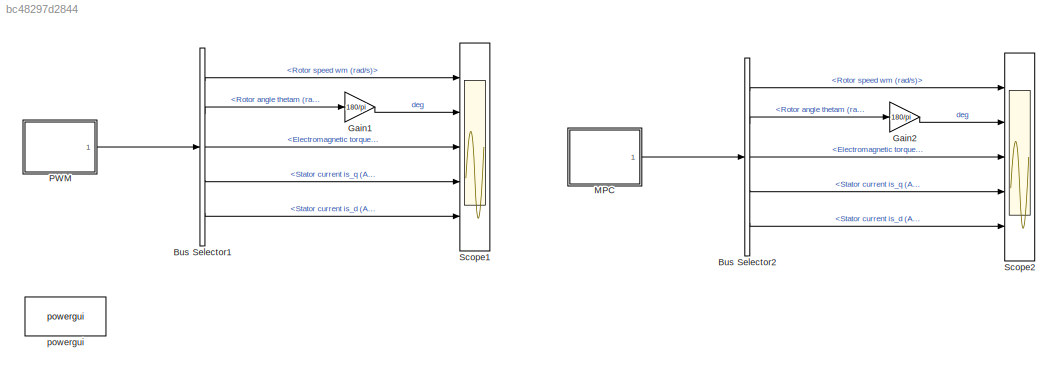
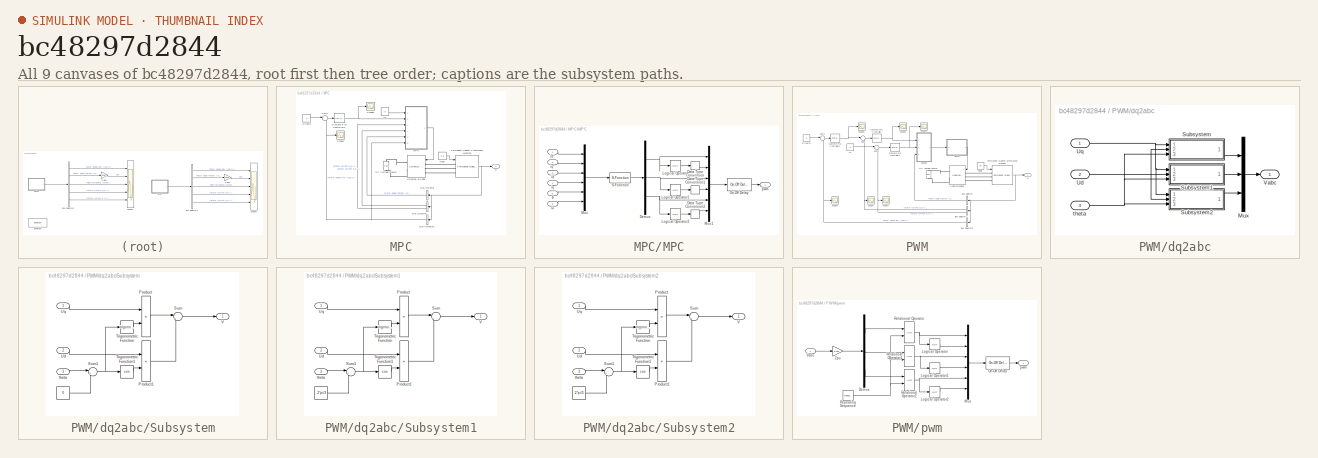
[diagram: thumbnail index - all 9 canvases of the model, root first then tree order]
MODEL slx_bc48297d2844
KIND model
CONFIG AbsTol = auto
CONFIG EnableMultiTasking = off
CONFIG FixedStep = auto
CONFIG MaxStep = 1e-4
CONFIG MinStep = auto
CONFIG RelTol = 1e-6
CONFIG SampleTimeConstraint = Unconstrained
CONFIG Solver = FixedStepDiscrete
CONFIG SolverName = FixedStepDiscrete
CONFIG StartTime = 0.0
CONFIG StopFcn = %CELEC_plot;
CONFIG StopTime = 0.05
BLOCK [BusSelector] Bus Selector1
  OutputAsBus = off
  OutputSignals = Rotor speed wm (rad/s),Rotor angle thetam (rad),Electromagnetic torque Te (N*m),Stator current is_q (A),Stator current is_d (A)
  Ports = [1, 5]
BLOCK [BusSelector] Bus Selector2
  OutputAsBus = off
  OutputSignals = Rotor speed wm (rad/s),Rotor angle thetam (rad),Electromagnetic torque Te (N*m),Stator current is_q (A),Stator current is_d (A)
  Ports = [1, 5]
BLOCK [Gain] Gain1
  Gain = 180/pi
  OutDataTypeStr = Inherit: Inherit via internal rule
  ParamDataTypeStr = Inherit: Inherit via internal rule
  SaturateOnIntegerOverflow = off
BLOCK [Gain] Gain2
  Gain = 180/pi
  OutDataTypeStr = Inherit: Inherit via internal rule
  ParamDataTypeStr = Inherit: Inherit via internal rule
  SaturateOnIntegerOverflow = off
BLOCK [SubSystem] MPC
  Ports = [0, 1]
  RequestExecContextInheritance = off
BLOCK [BusSelector] MPC/Bus Selector
  OutputAsBus = off
  OutputSignals = Rotor angle thetam (rad)
  Ports = [1, 1]
BLOCK [BusSelector] MPC/Bus Selector1
  OutputAsBus = off
  OutputSignals = Stator current is_q (A),Stator current is_d (A)
  Ports = [1, 2]
BLOCK [BusSelector] MPC/Bus Selector2
  OutputAsBus = off
  OutputSignals = Rotor speed wm (rad/s)
  Ports = [1, 1]
BLOCK [Reference] MPC/DC Voltage Source  REF=powerlib/Electrical
Sources/DC Voltage Source
  Ports = [0, 0, 0, 0, 0, 1, 1]
  SourceBlock = powerlib/Electrical\nSources/DC Voltage Source
  SourceProductBaseCode = PS
  SourceProductName = Simscape Power Systems
  SourceType = DC Voltage Source
BLOCK [Reference] MPC/Discrete PID Controller2  REF=simulink/Continuous/PID Controller
  Ports = [1, 1]
  SourceBlock = simulink/Continuous/PID Controller
  SourceProductBaseCode = SL
  SourceProductName = Simulink
  SourceType = PID 1dof
BLOCK [Constant] MPC/Id
  Value = 0
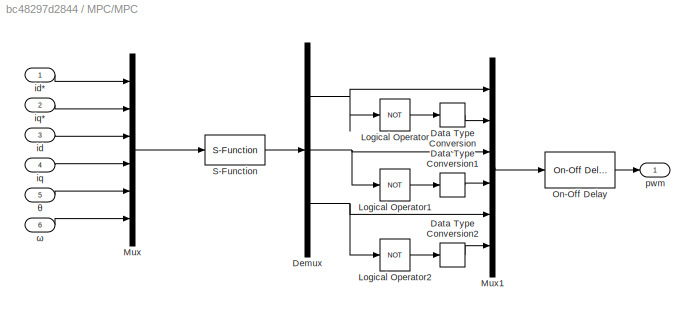
BLOCK [SubSystem] MPC/MPC
  Ports = [6, 1]
  RequestExecContextInheritance = off
BLOCK [DataTypeConversion] MPC/MPC/Data Type Conversion
  RndMeth = Floor
  SaturateOnIntegerOverflow = off
BLOCK [DataTypeConversion] MPC/MPC/Data Type Conversion1
  RndMeth = Floor
  SaturateOnIntegerOverflow = off
BLOCK [DataTypeConversion] MPC/MPC/Data Type Conversion2
  RndMeth = Floor
  SaturateOnIntegerOverflow = off
BLOCK [Demux] MPC/MPC/Demux
  DisplayOption = bar
  Outputs = 3
  Ports = [1, 3]
BLOCK [Logic] MPC/MPC/Logical Operator
  AllPortsSameDT = off
  Operator = NOT
  OutDataTypeStr = boolean
  Ports = [1, 1]
BLOCK [Logic] MPC/MPC/Logical Operator1
  AllPortsSameDT = off
  Operator = NOT
  OutDataTypeStr = boolean
  Ports = [1, 1]
BLOCK [Logic] MPC/MPC/Logical Operator2
  AllPortsSameDT = off
  Operator = NOT
  OutDataTypeStr = boolean
  Ports = [1, 1]
BLOCK [Mux] MPC/MPC/Mux
  DisplayOption = bar
  Inputs = 6
  Ports = [6, 1]
BLOCK [Mux] MPC/MPC/Mux1
  DisplayOption = bar
  Inputs = 6
  Ports = [6, 1]
BLOCK [Reference] MPC/MPC/On-Off Delay  REF=peGeneralControl/On-Off Delay
  Ports = [1, 1]
  SourceBlock = peGeneralControl/On-Off Delay
  SourceType = On-Off Delay
BLOCK [S-Function] MPC/MPC/S-Function
  EnableBusSupport = off
  FunctionName = mpc_pmsm
  Parameters = Vdc,R,Ld,Lq,Phif
  Ports = [1, 1]
  SFcnIsStateOwnerBlock = off
  SFunctionDeploymentMode = off
BLOCK [Inport] MPC/MPC/id
  IconDisplay = Port number
  Port = 3
BLOCK [Inport] MPC/MPC/id*
  IconDisplay = Port number
BLOCK [Inport] MPC/MPC/iq
  IconDisplay = Port number
  Port = 4
BLOCK [Inport] MPC/MPC/iq*
  IconDisplay = Port number
  Port = 2
BLOCK [Outport] MPC/MPC/pwm
  IconDisplay = Port number
BLOCK [Inport] MPC/MPC/θ
  IconDisplay = Port number
  Port = 5
BLOCK [Inport] MPC/MPC/ω
  IconDisplay = Port number
  Port = 6
BLOCK [Reference] MPC/Permanent Magnet Synchronous Machine  REF=powerlib/Machines/Permanent Magnet
Synchronous Machine
  Ports = [1, 1, 0, 0, 0, 3]
  SourceBlock = powerlib/Machines/Permanent Magnet\nSynchronous Machine
  SourceProductBaseCode = PS
  SourceProductName = Simscape Power Systems
  SourceType = Permanent Magnet Synchronous Machine
BLOCK [Scope] MPC/Scope4
  Floating = off
  NumInputPorts = 1
  Ports = [1]
  ScopeSpecificationString = Simulink.scopes.TimeScopeBlockCfg('CurrentConfiguration', extmgr.ConfigurationSet(extmgr.Configuration('Core','General UI',true),extmgr.Configuration('Core','Source UI',true),extmgr.Configuration('Sources','WiredSimulink',true,'DataLoggingVariableName','ScopeData11'),extmgr.Configuration('Visuals','Time Domain',true,'SerializedDisplays',{struct('MinYLimReal','-0.63361','MaxYLimReal','5.7025','YLab...<+1478ch>
BLOCK [Scope] MPC/Scope5
  Floating = off
  NumInputPorts = 1
  Ports = [1]
  ScopeSpecificationString = Simulink.scopes.TimeScopeBlockCfg('CurrentConfiguration', extmgr.ConfigurationSet(extmgr.Configuration('Core','General UI',true),extmgr.Configuration('Core','Source UI',true),extmgr.Configuration('Sources','WiredSimulink',true,'DataLoggingVariableName','ScopeData12'),extmgr.Configuration('Visuals','Time Domain',true,'SerializedDisplays',{struct('MinYLimReal','0.83078','MaxYLimReal','5.46325','YLab...<+1480ch>
BLOCK [Sum] MPC/Sum2
  IconShape = round
  InputSameDT = off
  Inputs = |+-
  OutDataTypeStr = Inherit: Inherit via internal rule
  Ports = [2, 1]
  SaturateOnIntegerOverflow = off
BLOCK [Constant] MPC/Tload
  Value = 0.5
BLOCK [Reference] MPC/Universal Bridge  REF=powerlib/Power
Electronics/Universal Bridge
  Ports = [1, 0, 0, 0, 0, 3, 2]
  SourceBlock = powerlib/Power\nElectronics/Universal Bridge
  SourceProductBaseCode = PS
  SourceProductName = Simscape Power Systems
  SourceType = Universal Bridge
BLOCK [Outport] MPC/m
  IconDisplay = Port number
BLOCK [Constant] MPC/w(rad//s)
  Value = 5
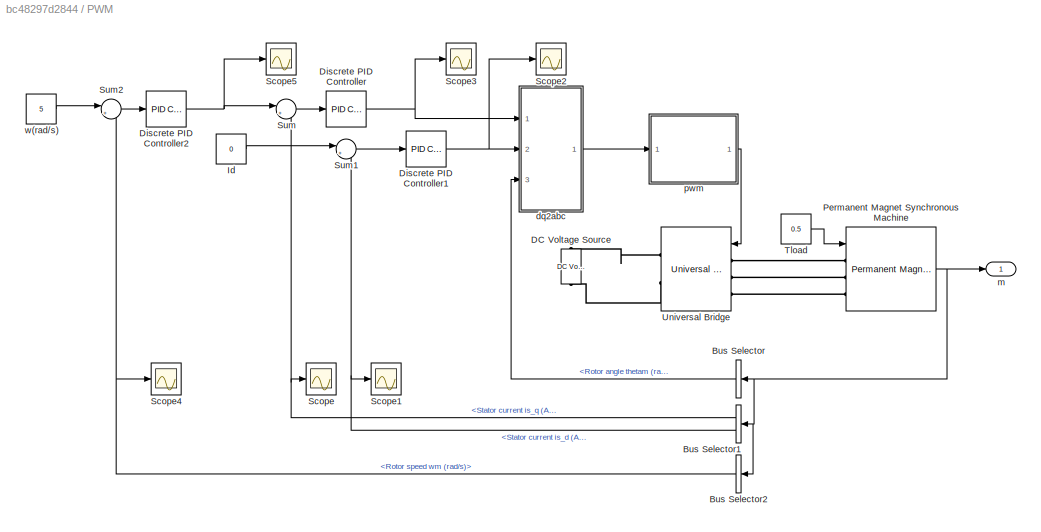
BLOCK [SubSystem] PWM
  Ports = [0, 1]
  RequestExecContextInheritance = off
BLOCK [BusSelector] PWM/Bus Selector
  OutputAsBus = off
  OutputSignals = Rotor angle thetam (rad)
  Ports = [1, 1]
BLOCK [BusSelector] PWM/Bus Selector1
  OutputAsBus = off
  OutputSignals = Stator current is_q (A),Stator current is_d (A)
  Ports = [1, 2]
BLOCK [BusSelector] PWM/Bus Selector2
  OutputAsBus = off
  OutputSignals = Rotor speed wm (rad/s)
  Ports = [1, 1]
BLOCK [Reference] PWM/DC Voltage Source  REF=powerlib/Electrical
Sources/DC Voltage Source
  Ports = [0, 0, 0, 0, 0, 1, 1]
  SourceBlock = powerlib/Electrical\nSources/DC Voltage Source
  SourceProductBaseCode = PS
  SourceProductName = Simscape Power Systems
  SourceType = DC Voltage Source
BLOCK [Reference] PWM/Discrete PID Controller  REF=simulink/Continuous/PID Controller
  Ports = [1, 1]
  SourceBlock = simulink/Continuous/PID Controller
  SourceProductBaseCode = SL
  SourceProductName = Simulink
  SourceType = PID 1dof
BLOCK [Reference] PWM/Discrete PID Controller1  REF=simulink/Continuous/PID Controller
  Ports = [1, 1]
  SourceBlock = simulink/Continuous/PID Controller
  SourceProductBaseCode = SL
  SourceProductName = Simulink
  SourceType = PID 1dof
BLOCK [Reference] PWM/Discrete PID Controller2  REF=simulink/Continuous/PID Controller
  Ports = [1, 1]
  SourceBlock = simulink/Continuous/PID Controller
  SourceProductBaseCode = SL
  SourceProductName = Simulink
  SourceType = PID 1dof
BLOCK [Constant] PWM/Id
  Value = 0
BLOCK [Reference] PWM/Permanent Magnet Synchronous Machine  REF=powerlib/Machines/Permanent Magnet
Synchronous Machine
  Ports = [1, 1, 0, 0, 0, 3]
  SourceBlock = powerlib/Machines/Permanent Magnet\nSynchronous Machine
  SourceProductBaseCode = PS
  SourceProductName = Simscape Power Systems
  SourceType = Permanent Magnet Synchronous Machine
BLOCK [Scope] PWM/Scope
  Floating = off
  NumInputPorts = 1
  Ports = [1]
  ScopeSpecificationString = Simulink.scopes.TimeScopeBlockCfg('CurrentConfiguration', extmgr.ConfigurationSet(extmgr.Configuration('Core','General UI',true),extmgr.Configuration('Core','Source UI',true),extmgr.Configuration('Sources','WiredSimulink',true,'DataLoggingVariableName','ScopeData7'),extmgr.Configuration('Visuals','Time Domain',true,'SerializedDisplays',{struct('MinYLimReal','-0.62514','MaxYLimReal','5.62624','YLab...<+1482ch>
BLOCK [Scope] PWM/Scope1
  Floating = off
  NumInputPorts = 1
  Ports = [1]
  ScopeSpecificationString = Simulink.scopes.TimeScopeBlockCfg('CurrentConfiguration', extmgr.ConfigurationSet(extmgr.Configuration('Core','General UI',true),extmgr.Configuration('Core','Source UI',true),extmgr.Configuration('Sources','WiredSimulink',true,'DataLoggingVariableName','ScopeData8'),extmgr.Configuration('Visuals','Time Domain',true,'SerializedDisplays',{struct('MinYLimReal','-0.00019','MaxYLimReal','0.00115','YLab...<+1409ch>
BLOCK [Scope] PWM/Scope2
  Floating = off
  NumInputPorts = 1
  Ports = [1]
  ScopeSpecificationString = Simulink.scopes.TimeScopeBlockCfg('CurrentConfiguration', extmgr.ConfigurationSet(extmgr.Configuration('Core','General UI',true),extmgr.Configuration('Core','Source UI',true),extmgr.Configuration('Sources','WiredSimulink',true,'DataLoggingVariableName','ScopeData9'),extmgr.Configuration('Visuals','Time Domain',true,'SerializedDisplays',{struct('MinYLimReal','-90.76761','MaxYLimReal','89.7655','YLa...<+1387ch>
BLOCK [Scope] PWM/Scope3
  Floating = off
  NumInputPorts = 1
  Ports = [1]
  ScopeSpecificationString = Simulink.scopes.TimeScopeBlockCfg('CurrentConfiguration', extmgr.ConfigurationSet(extmgr.Configuration('Core','General UI',true),extmgr.Configuration('Core','Source UI',true),extmgr.Configuration('Sources','WiredSimulink',true,'DataLoggingVariableName','ScopeData10'),extmgr.Configuration('Visuals','Time Domain',true,'SerializedDisplays',{struct('MinYLimReal','-54.60763','MaxYLimReal','117.17863','...<+1418ch>
BLOCK [Scope] PWM/Scope4
  Floating = off
  NumInputPorts = 1
  Ports = [1]
  ScopeSpecificationString = Simulink.scopes.TimeScopeBlockCfg('CurrentConfiguration', extmgr.ConfigurationSet(extmgr.Configuration('Core','General UI',true),extmgr.Configuration('Core','Source UI',true),extmgr.Configuration('Sources','WiredSimulink',true,'DataLoggingVariableName','ScopeData11'),extmgr.Configuration('Visuals','Time Domain',true,'SerializedDisplays',{struct('MinYLimReal','-0.63361','MaxYLimReal','5.7025','YLab...<+1478ch>
BLOCK [Scope] PWM/Scope5
  Floating = off
  NumInputPorts = 1
  Ports = [1]
  ScopeSpecificationString = Simulink.scopes.TimeScopeBlockCfg('CurrentConfiguration', extmgr.ConfigurationSet(extmgr.Configuration('Core','General UI',true),extmgr.Configuration('Core','Source UI',true),extmgr.Configuration('Sources','WiredSimulink',true,'DataLoggingVariableName','ScopeData12'),extmgr.Configuration('Visuals','Time Domain',true,'SerializedDisplays',{struct('MinYLimReal','0.83078','MaxYLimReal','5.46325','YLab...<+1480ch>
BLOCK [Sum] PWM/Sum
  IconShape = round
  InputSameDT = off
  Inputs = |+-
  OutDataTypeStr = Inherit: Inherit via internal rule
  Ports = [2, 1]
  SaturateOnIntegerOverflow = off
BLOCK [Sum] PWM/Sum1
  IconShape = round
  InputSameDT = off
  Inputs = |+-
  OutDataTypeStr = Inherit: Inherit via internal rule
  Ports = [2, 1]
  SaturateOnIntegerOverflow = off
BLOCK [Sum] PWM/Sum2
  IconShape = round
  InputSameDT = off
  Inputs = |+-
  OutDataTypeStr = Inherit: Inherit via internal rule
  Ports = [2, 1]
  SaturateOnIntegerOverflow = off
BLOCK [Constant] PWM/Tload
  Value = 0.5
BLOCK [Reference] PWM/Universal Bridge  REF=powerlib/Power
Electronics/Universal Bridge
  Ports = [1, 0, 0, 0, 0, 3, 2]
  SourceBlock = powerlib/Power\nElectronics/Universal Bridge
  SourceProductBaseCode = PS
  SourceProductName = Simscape Power Systems
  SourceType = Universal Bridge
BLOCK [SubSystem] PWM/dq2abc
  Ports = [3, 1]
  RequestExecContextInheritance = off
BLOCK [Mux] PWM/dq2abc/Mux
  DisplayOption = bar
  Inputs = 3
  Ports = [3, 1]
BLOCK [SubSystem] PWM/dq2abc/Subsystem
  Ports = [3, 1]
  RequestExecContextInheritance = off
BLOCK [Constant] PWM/dq2abc/Subsystem/  
  Value = 0
BLOCK [Product] PWM/dq2abc/Subsystem/Product
  InputSameDT = off
  OutDataTypeStr = Inherit: Inherit via internal rule
  Ports = [2, 1]
  RndMeth = Floor
  SaturateOnIntegerOverflow = off
BLOCK [Product] PWM/dq2abc/Subsystem/Product1
  InputSameDT = off
  OutDataTypeStr = Inherit: Inherit via internal rule
  Ports = [2, 1]
  RndMeth = Floor
  SaturateOnIntegerOverflow = off
BLOCK [Sum] PWM/dq2abc/Subsystem/Sum
  IconShape = round
  InputSameDT = off
  Inputs = |-+
  OutDataTypeStr = Inherit: Inherit via internal rule
  Ports = [2, 1]
  SaturateOnIntegerOverflow = off
BLOCK [Sum] PWM/dq2abc/Subsystem/Sum1
  IconShape = round
  InputSameDT = off
  Inputs = |++
  OutDataTypeStr = Inherit: Inherit via internal rule
  Ports = [2, 1]
  SaturateOnIntegerOverflow = off
BLOCK [Trigonometry] PWM/dq2abc/Subsystem/Trigonometric Function
  Ports = [1, 1]
BLOCK [Trigonometry] PWM/dq2abc/Subsystem/Trigonometric Function1
  Operator = cos
  Ports = [1, 1]
BLOCK [Inport] PWM/dq2abc/Subsystem/Ud
  IconDisplay = Port number
  Port = 2
BLOCK [Inport] PWM/dq2abc/Subsystem/Uq
  IconDisplay = Port number
BLOCK [Outport] PWM/dq2abc/Subsystem/V
  IconDisplay = Port number
BLOCK [Inport] PWM/dq2abc/Subsystem/theta
  IconDisplay = Port number
  Port = 3
BLOCK [SubSystem] PWM/dq2abc/Subsystem1
  Ports = [3, 1]
  RequestExecContextInheritance = off
BLOCK [Constant] PWM/dq2abc/Subsystem1/  
  Value = -2*pi/3
BLOCK [Product] PWM/dq2abc/Subsystem1/Product
  InputSameDT = off
  OutDataTypeStr = Inherit: Inherit via internal rule
  Ports = [2, 1]
  RndMeth = Floor
  SaturateOnIntegerOverflow = off
BLOCK [Product] PWM/dq2abc/Subsystem1/Product1
  InputSameDT = off
  OutDataTypeStr = Inherit: Inherit via internal rule
  Ports = [2, 1]
  RndMeth = Floor
  SaturateOnIntegerOverflow = off
BLOCK [Sum] PWM/dq2abc/Subsystem1/Sum
  IconShape = round
  InputSameDT = off
  Inputs = |-+
  OutDataTypeStr = Inherit: Inherit via internal rule
  Ports = [2, 1]
  SaturateOnIntegerOverflow = off
BLOCK [Sum] PWM/dq2abc/Subsystem1/Sum1
  IconShape = round
  InputSameDT = off
  Inputs = |++
  OutDataTypeStr = Inherit: Inherit via internal rule
  Ports = [2, 1]
  SaturateOnIntegerOverflow = off
BLOCK [Trigonometry] PWM/dq2abc/Subsystem1/Trigonometric Function
  Ports = [1, 1]
BLOCK [Trigonometry] PWM/dq2abc/Subsystem1/Trigonometric Function1
  Operator = cos
  Ports = [1, 1]
BLOCK [Inport] PWM/dq2abc/Subsystem1/Ud
  IconDisplay = Port number
  Port = 2
BLOCK [Inport] PWM/dq2abc/Subsystem1/Uq
  IconDisplay = Port number
BLOCK [Outport] PWM/dq2abc/Subsystem1/V
  IconDisplay = Port number
BLOCK [Inport] PWM/dq2abc/Subsystem1/theta
  IconDisplay = Port number
  Port = 3
BLOCK [SubSystem] PWM/dq2abc/Subsystem2
  Ports = [3, 1]
  RequestExecContextInheritance = off
BLOCK [Constant] PWM/dq2abc/Subsystem2/  
  Value = 2*pi/3
BLOCK [Product] PWM/dq2abc/Subsystem2/Product
  InputSameDT = off
  OutDataTypeStr = Inherit: Inherit via internal rule
  Ports = [2, 1]
  RndMeth = Floor
  SaturateOnIntegerOverflow = off
BLOCK [Product] PWM/dq2abc/Subsystem2/Product1
  InputSameDT = off
  OutDataTypeStr = Inherit: Inherit via internal rule
  Ports = [2, 1]
  RndMeth = Floor
  SaturateOnIntegerOverflow = off
BLOCK [Sum] PWM/dq2abc/Subsystem2/Sum
  IconShape = round
  InputSameDT = off
  Inputs = |-+
  OutDataTypeStr = Inherit: Inherit via internal rule
  Ports = [2, 1]
  SaturateOnIntegerOverflow = off
BLOCK [Sum] PWM/dq2abc/Subsystem2/Sum1
  IconShape = round
  InputSameDT = off
  Inputs = |++
  OutDataTypeStr = Inherit: Inherit via internal rule
  Ports = [2, 1]
  SaturateOnIntegerOverflow = off
BLOCK [Trigonometry] PWM/dq2abc/Subsystem2/Trigonometric Function
  Ports = [1, 1]
BLOCK [Trigonometry] PWM/dq2abc/Subsystem2/Trigonometric Function1
  Operator = cos
  Ports = [1, 1]
BLOCK [Inport] PWM/dq2abc/Subsystem2/Ud
  IconDisplay = Port number
  Port = 2
BLOCK [Inport] PWM/dq2abc/Subsystem2/Uq
  IconDisplay = Port number
BLOCK [Outport] PWM/dq2abc/Subsystem2/V
  IconDisplay = Port number
BLOCK [Inport] PWM/dq2abc/Subsystem2/theta
  IconDisplay = Port number
  Port = 3
BLOCK [Inport] PWM/dq2abc/Ud
  IconDisplay = Port number
  Port = 2
BLOCK [Inport] PWM/dq2abc/Uq
  IconDisplay = Port number
BLOCK [Outport] PWM/dq2abc/Vabc
  IconDisplay = Port number
BLOCK [Inport] PWM/dq2abc/theta
  IconDisplay = Port number
  Port = 3
BLOCK [Outport] PWM/m
  IconDisplay = Port number
BLOCK [SubSystem] PWM/pwm
  Ports = [1, 1]
  RequestExecContextInheritance = off
BLOCK [Gain] PWM/pwm/2pu
  Gain = 1/100
  OutDataTypeStr = Inherit: Inherit via internal rule
  ParamDataTypeStr = Inherit: Inherit via internal rule
  SaturateOnIntegerOverflow = off
BLOCK [Demux] PWM/pwm/Demux
  DisplayOption = bar
  Outputs = 3
  Ports = [1, 3]
BLOCK [Logic] PWM/pwm/Logical Operator
  AllPortsSameDT = off
  Operator = NOT
  OutDataTypeStr = boolean
  Ports = [1, 1]
BLOCK [Logic] PWM/pwm/Logical Operator1
  AllPortsSameDT = off
  Operator = NOT
  OutDataTypeStr = boolean
  Ports = [1, 1]
BLOCK [Logic] PWM/pwm/Logical Operator2
  AllPortsSameDT = off
  Operator = NOT
  OutDataTypeStr = boolean
  Ports = [1, 1]
BLOCK [Mux] PWM/pwm/Mux
  DisplayOption = bar
  Inputs = 6
  Ports = [6, 1]
BLOCK [Reference] PWM/pwm/On-Off Delay  REF=peGeneralControl/On-Off Delay
  Ports = [1, 1]
  SourceBlock = peGeneralControl/On-Off Delay
  SourceType = On-Off Delay
BLOCK [RelationalOperator] PWM/pwm/Relational Operator
  InputSameDT = off
  OutDataTypeStr = boolean
  Ports = [2, 1]
  RndMeth = Simplest
BLOCK [RelationalOperator] PWM/pwm/Relational Operator1
  InputSameDT = off
  OutDataTypeStr = boolean
  Ports = [2, 1]
  RndMeth = Simplest
BLOCK [RelationalOperator] PWM/pwm/Relational Operator2
  InputSameDT = off
  OutDataTypeStr = boolean
  Ports = [2, 1]
  RndMeth = Simplest
BLOCK [Reference] PWM/pwm/Repeating Sequence  REF=simulink/Sources/Repeating
Sequence
  Ports = [0, 1]
  SourceBlock = simulink/Sources/Repeating\nSequence
  SourceProductBaseCode = SL
  SourceProductName = Simulink
  SourceType = Repeating table
BLOCK [Inport] PWM/pwm/Vabc
  IconDisplay = Port number
BLOCK [Outport] PWM/pwm/pwm
  IconDisplay = Port number
BLOCK [Constant] PWM/w(rad//s)
  Value = 5
BLOCK [Scope] Scope1
  Floating = off
  NumInputPorts = 5
  Ports = [5]
  ScopeSpecificationString = Simulink.scopes.TimeScopeBlockCfg('CurrentConfiguration', extmgr.ConfigurationSet(extmgr.Configuration('Core','General UI',true),extmgr.Configuration('Core','Source UI',true),extmgr.Configuration('Sources','WiredSimulink',true),extmgr.Configuration('Visuals','Time Domain',true,'SerializedDisplays',{struct('MinYLimReal','-0.63045','MaxYLimReal','5.63416','YLabelReal','','MinYLimMag','0.00000','MaxY...<+4313ch>
BLOCK [Scope] Scope2
  Floating = off
  NumInputPorts = 5
  Ports = [5]
  ScopeSpecificationString = Simulink.scopes.TimeScopeBlockCfg('CurrentConfiguration', extmgr.ConfigurationSet(extmgr.Configuration('Core','General UI',true),extmgr.Configuration('Core','Source UI',true),extmgr.Configuration('Sources','WiredSimulink',true,'DataLoggingVariableName','ScopeData1'),extmgr.Configuration('Visuals','Time Domain',true,'SerializedDisplays',{struct('MinYLimReal','-0.62456','MaxYLimReal','5.59402','YLab...<+4351ch>
BLOCK [Reference] powergui  REF=powerlib/powergui
  Ports = []
  Priority = 1
  SourceBlock = powerlib/powergui
  SourceProductBaseCode = PS
  SourceProductName = Simscape Power Systems
  SourceType = PSB option menu block
LINE Bus Selector1:1 -> Scope1:1
LINE Bus Selector1:2 -> Gain1:1
LINE Bus Selector1:3 -> Scope1:3
LINE Bus Selector1:4 -> Scope1:4
LINE Bus Selector1:5 -> Scope1:5
LINE Bus Selector2:1 -> Scope2:1
LINE Bus Selector2:2 -> Gain2:1
LINE Bus Selector2:3 -> Scope2:3
LINE Bus Selector2:4 -> Scope2:4
LINE Bus Selector2:5 -> Scope2:5
LINE Gain1:1 -> Scope1:2
LINE Gain2:1 -> Scope2:2
LINE MPC/Bus Selector1:1 -> MPC/MPC:4
LINE MPC/Bus Selector1:2 -> MPC/MPC:3
NET MPC/Bus Selector2:1 -> MPC/MPC:6, MPC/Scope4:1, MPC/Sum2:2
LINE MPC/Bus Selector:1 -> MPC/MPC:5
NET MPC/Discrete PID Controller2:1 -> MPC/MPC:2, MPC/Scope5:1
LINE MPC/Id:1 -> MPC/MPC:1
LINE MPC/MPC/Data Type Conversion1:1 -> MPC/MPC/Mux1:4
LINE MPC/MPC/Data Type Conversion2:1 -> MPC/MPC/Mux1:6
LINE MPC/MPC/Data Type Conversion:1 -> MPC/MPC/Mux1:2
NET MPC/MPC/Demux:1 -> MPC/MPC/Logical Operator:1, MPC/MPC/Mux1:1
NET MPC/MPC/Demux:2 -> MPC/MPC/Logical Operator1:1, MPC/MPC/Mux1:3
NET MPC/MPC/Demux:3 -> MPC/MPC/Logical Operator2:1, MPC/MPC/Mux1:5
LINE MPC/MPC/Logical Operator1:1 -> MPC/MPC/Data Type Conversion1:1
LINE MPC/MPC/Logical Operator2:1 -> MPC/MPC/Data Type Conversion2:1
LINE MPC/MPC/Logical Operator:1 -> MPC/MPC/Data Type Conversion:1
LINE MPC/MPC/Mux1:1 -> MPC/MPC/On-Off Delay:1
LINE MPC/MPC/Mux:1 -> MPC/MPC/S-Function:1
LINE MPC/MPC/On-Off Delay:1 -> MPC/MPC/pwm:1
LINE MPC/MPC/S-Function:1 -> MPC/MPC/Demux:1
LINE MPC/MPC/id*:1 -> MPC/MPC/Mux:1
LINE MPC/MPC/id:1 -> MPC/MPC/Mux:3
LINE MPC/MPC/iq*:1 -> MPC/MPC/Mux:2
LINE MPC/MPC/iq:1 -> MPC/MPC/Mux:4
LINE MPC/MPC/θ:1 -> MPC/MPC/Mux:5
LINE MPC/MPC/ω:1 -> MPC/MPC/Mux:6
LINE MPC/MPC:1 -> MPC/Universal Bridge:1
NET MPC/Permanent Magnet Synchronous Machine:1 -> MPC/Bus Selector1:1, MPC/Bus Selector2:1, MPC/Bus Selector:1, MPC/m:1
LINE MPC/Sum2:1 -> MPC/Discrete PID Controller2:1
LINE MPC/Tload:1 -> MPC/Permanent Magnet Synchronous Machine:1
LINE MPC/w(rad//s):1 -> MPC/Sum2:1
LINE MPC:1 -> Bus Selector2:1
NET PWM/Bus Selector1:1 -> PWM/Scope:1, PWM/Sum:2
NET PWM/Bus Selector1:2 -> PWM/Scope1:1, PWM/Sum1:2
NET PWM/Bus Selector2:1 -> PWM/Scope4:1, PWM/Sum2:2
LINE PWM/Bus Selector:1 -> PWM/dq2abc:3
NET PWM/Discrete PID Controller1:1 -> PWM/Scope2:1, PWM/dq2abc:2
NET PWM/Discrete PID Controller2:1 -> PWM/Scope5:1, PWM/Sum:1
NET PWM/Discrete PID Controller:1 -> PWM/Scope3:1, PWM/dq2abc:1
LINE PWM/Id:1 -> PWM/Sum1:1
NET PWM/Permanent Magnet Synchronous Machine:1 -> PWM/Bus Selector1:1, PWM/Bus Selector2:1, PWM/Bus Selector:1, PWM/m:1
LINE PWM/Sum1:1 -> PWM/Discrete PID Controller1:1
LINE PWM/Sum2:1 -> PWM/Discrete PID Controller2:1
LINE PWM/Sum:1 -> PWM/Discrete PID Controller:1
LINE PWM/Tload:1 -> PWM/Permanent Magnet Synchronous Machine:1
LINE PWM/dq2abc/Mux:1 -> PWM/dq2abc/Vabc:1
LINE PWM/dq2abc/Subsystem/  :1 -> PWM/dq2abc/Subsystem/Sum1:2
LINE PWM/dq2abc/Subsystem/Product1:1 -> PWM/dq2abc/Subsystem/Sum:2
LINE PWM/dq2abc/Subsystem/Product:1 -> PWM/dq2abc/Subsystem/Sum:1
NET PWM/dq2abc/Subsystem/Sum1:1 -> PWM/dq2abc/Subsystem/Trigonometric Function1:1, PWM/dq2abc/Subsystem/Trigonometric Function:1
LINE PWM/dq2abc/Subsystem/Sum:1 -> PWM/dq2abc/Subsystem/V:1
LINE PWM/dq2abc/Subsystem/Trigonometric Function1:1 -> PWM/dq2abc/Subsystem/Product1:2
LINE PWM/dq2abc/Subsystem/Trigonometric Function:1 -> PWM/dq2abc/Subsystem/Product:2
LINE PWM/dq2abc/Subsystem/Ud:1 -> PWM/dq2abc/Subsystem/Product1:1
LINE PWM/dq2abc/Subsystem/Uq:1 -> PWM/dq2abc/Subsystem/Product:1
LINE PWM/dq2abc/Subsystem/theta:1 -> PWM/dq2abc/Subsystem/Sum1:1
LINE PWM/dq2abc/Subsystem1/  :1 -> PWM/dq2abc/Subsystem1/Sum1:2
LINE PWM/dq2abc/Subsystem1/Product1:1 -> PWM/dq2abc/Subsystem1/Sum:2
LINE PWM/dq2abc/Subsystem1/Product:1 -> PWM/dq2abc/Subsystem1/Sum:1
NET PWM/dq2abc/Subsystem1/Sum1:1 -> PWM/dq2abc/Subsystem1/Trigonometric Function1:1, PWM/dq2abc/Subsystem1/Trigonometric Function:1
LINE PWM/dq2abc/Subsystem1/Sum:1 -> PWM/dq2abc/Subsystem1/V:1
LINE PWM/dq2abc/Subsystem1/Trigonometric Function1:1 -> PWM/dq2abc/Subsystem1/Product1:2
LINE PWM/dq2abc/Subsystem1/Trigonometric Function:1 -> PWM/dq2abc/Subsystem1/Product:2
LINE PWM/dq2abc/Subsystem1/Ud:1 -> PWM/dq2abc/Subsystem1/Product1:1
LINE PWM/dq2abc/Subsystem1/Uq:1 -> PWM/dq2abc/Subsystem1/Product:1
LINE PWM/dq2abc/Subsystem1/theta:1 -> PWM/dq2abc/Subsystem1/Sum1:1
LINE PWM/dq2abc/Subsystem1:1 -> PWM/dq2abc/Mux:2
LINE PWM/dq2abc/Subsystem2/  :1 -> PWM/dq2abc/Subsystem2/Sum1:2
LINE PWM/dq2abc/Subsystem2/Product1:1 -> PWM/dq2abc/Subsystem2/Sum:2
LINE PWM/dq2abc/Subsystem2/Product:1 -> PWM/dq2abc/Subsystem2/Sum:1
NET PWM/dq2abc/Subsystem2/Sum1:1 -> PWM/dq2abc/Subsystem2/Trigonometric Function1:1, PWM/dq2abc/Subsystem2/Trigonometric Function:1
LINE PWM/dq2abc/Subsystem2/Sum:1 -> PWM/dq2abc/Subsystem2/V:1
LINE PWM/dq2abc/Subsystem2/Trigonometric Function1:1 -> PWM/dq2abc/Subsystem2/Product1:2
LINE PWM/dq2abc/Subsystem2/Trigonometric Function:1 -> PWM/dq2abc/Subsystem2/Product:2
LINE PWM/dq2abc/Subsystem2/Ud:1 -> PWM/dq2abc/Subsystem2/Product1:1
LINE PWM/dq2abc/Subsystem2/Uq:1 -> PWM/dq2abc/Subsystem2/Product:1
LINE PWM/dq2abc/Subsystem2/theta:1 -> PWM/dq2abc/Subsystem2/Sum1:1
LINE PWM/dq2abc/Subsystem2:1 -> PWM/dq2abc/Mux:3
LINE PWM/dq2abc/Subsystem:1 -> PWM/dq2abc/Mux:1
NET PWM/dq2abc/Ud:1 -> PWM/dq2abc/Subsystem1:2, PWM/dq2abc/Subsystem2:2, PWM/dq2abc/Subsystem:2
NET PWM/dq2abc/Uq:1 -> PWM/dq2abc/Subsystem1:1, PWM/dq2abc/Subsystem2:1, PWM/dq2abc/Subsystem:1
NET PWM/dq2abc/theta:1 -> PWM/dq2abc/Subsystem1:3, PWM/dq2abc/Subsystem2:3, PWM/dq2abc/Subsystem:3
LINE PWM/dq2abc:1 -> PWM/pwm:1
LINE PWM/pwm/2pu:1 -> PWM/pwm/Demux:1
LINE PWM/pwm/Demux:1 -> PWM/pwm/Relational Operator:1
LINE PWM/pwm/Demux:2 -> PWM/pwm/Relational Operator1:1
LINE PWM/pwm/Demux:3 -> PWM/pwm/Relational Operator2:1
LINE PWM/pwm/Logical Operator1:1 -> PWM/pwm/Mux:4
LINE PWM/pwm/Logical Operator2:1 -> PWM/pwm/Mux:6
LINE PWM/pwm/Logical Operator:1 -> PWM/pwm/Mux:2
LINE PWM/pwm/Mux:1 -> PWM/pwm/On-Off Delay:1
LINE PWM/pwm/On-Off Delay:1 -> PWM/pwm/pwm:1
NET PWM/pwm/Relational Operator1:1 -> PWM/pwm/Logical Operator1:1, PWM/pwm/Mux:3
NET PWM/pwm/Relational Operator2:1 -> PWM/pwm/Logical Operator2:1, PWM/pwm/Mux:5
NET PWM/pwm/Relational Operator:1 -> PWM/pwm/Logical Operator:1, PWM/pwm/Mux:1
NET PWM/pwm/Repeating Sequence:1 -> PWM/pwm/Relational Operator1:2, PWM/pwm/Relational Operator2:2, PWM/pwm/Relational Operator:2
LINE PWM/pwm/Vabc:1 -> PWM/pwm/2pu:1
LINE PWM/pwm:1 -> PWM/Universal Bridge:1
LINE PWM/w(rad//s):1 -> PWM/Sum2:1
LINE PWM:1 -> Bus Selector1:1
PLINE MPC/DC Voltage Source:LConn1 -- MPC/Universal Bridge:RConn2
PLINE MPC/DC Voltage Source:RConn1 -- MPC/Universal Bridge:RConn1
PLINE MPC/Permanent Magnet Synchronous Machine:LConn1 -- MPC/Universal Bridge:LConn1
PLINE MPC/Permanent Magnet Synchronous Machine:LConn2 -- MPC/Universal Bridge:LConn2
PLINE MPC/Permanent Magnet Synchronous Machine:LConn3 -- MPC/Universal Bridge:LConn3
PLINE PWM/DC Voltage Source:LConn1 -- PWM/Universal Bridge:RConn2
PLINE PWM/DC Voltage Source:RConn1 -- PWM/Universal Bridge:RConn1
PLINE PWM/Permanent Magnet Synchronous Machine:LConn1 -- PWM/Universal Bridge:LConn1
PLINE PWM/Permanent Magnet Synchronous Machine:LConn2 -- PWM/Universal Bridge:LConn2
PLINE PWM/Permanent Magnet Synchronous Machine:LConn3 -- PWM/Universal Bridge:LConn3
note: NET lines group one-source signal fan-out (src -> all destinations, sorted); 1:1 wires keep LINE
